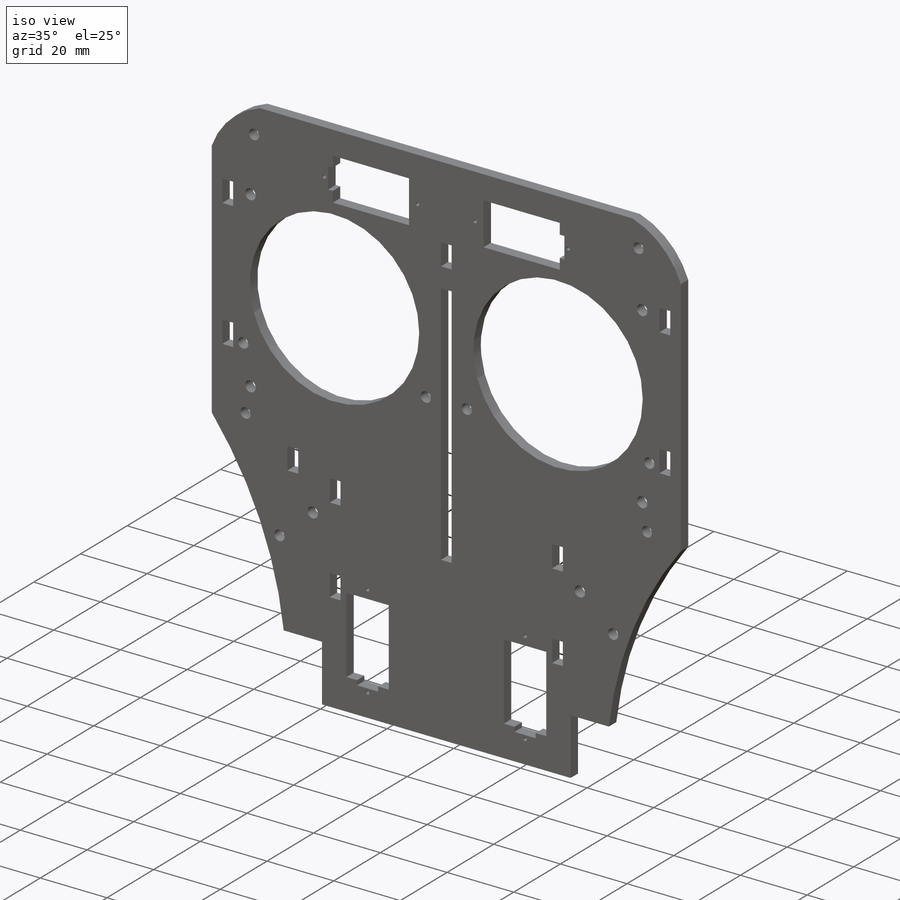
[diagram: iso view]
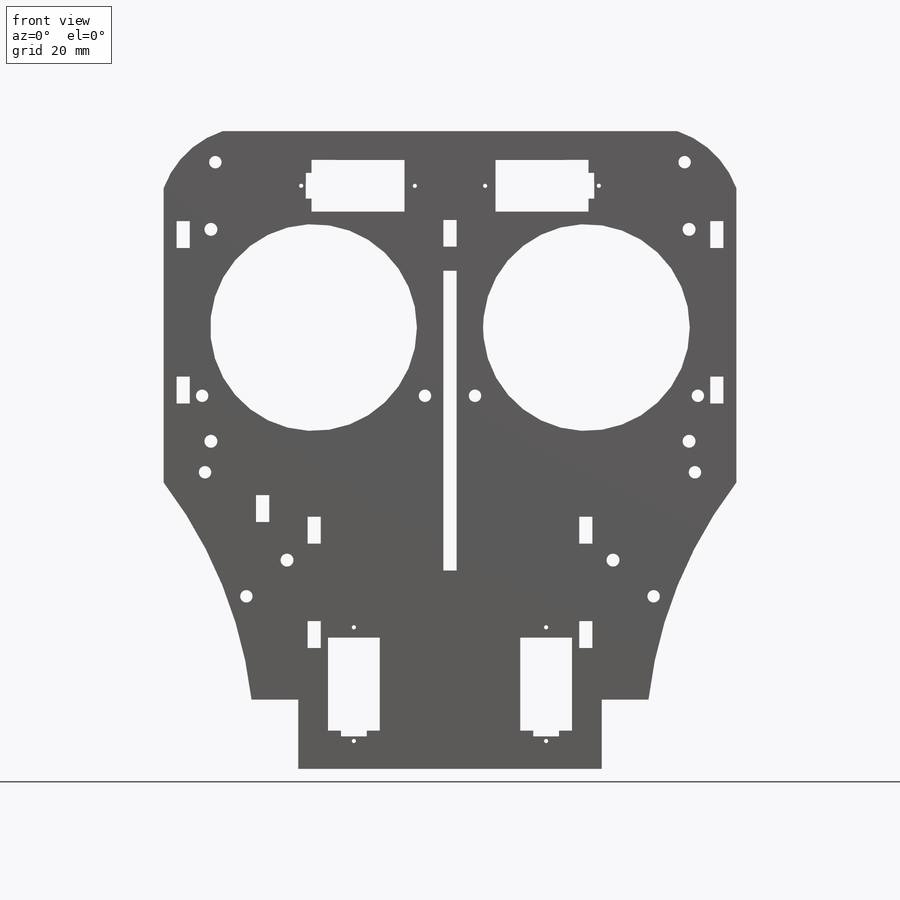
[diagram: front view]
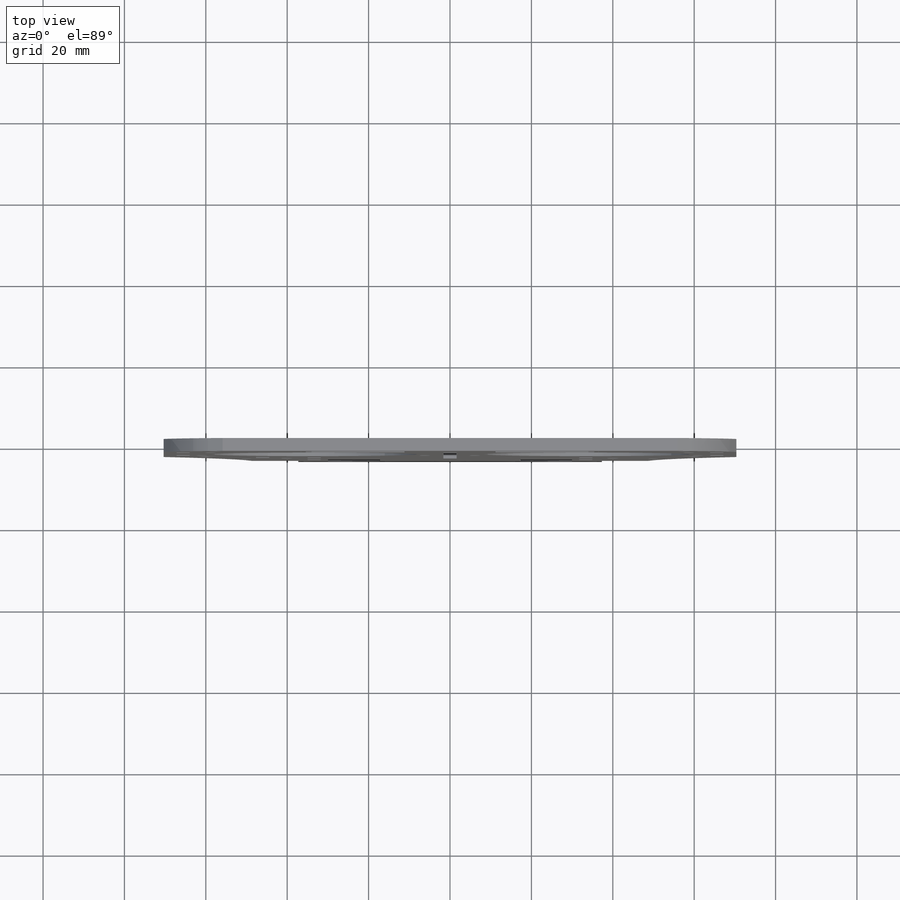
[diagram: top view]
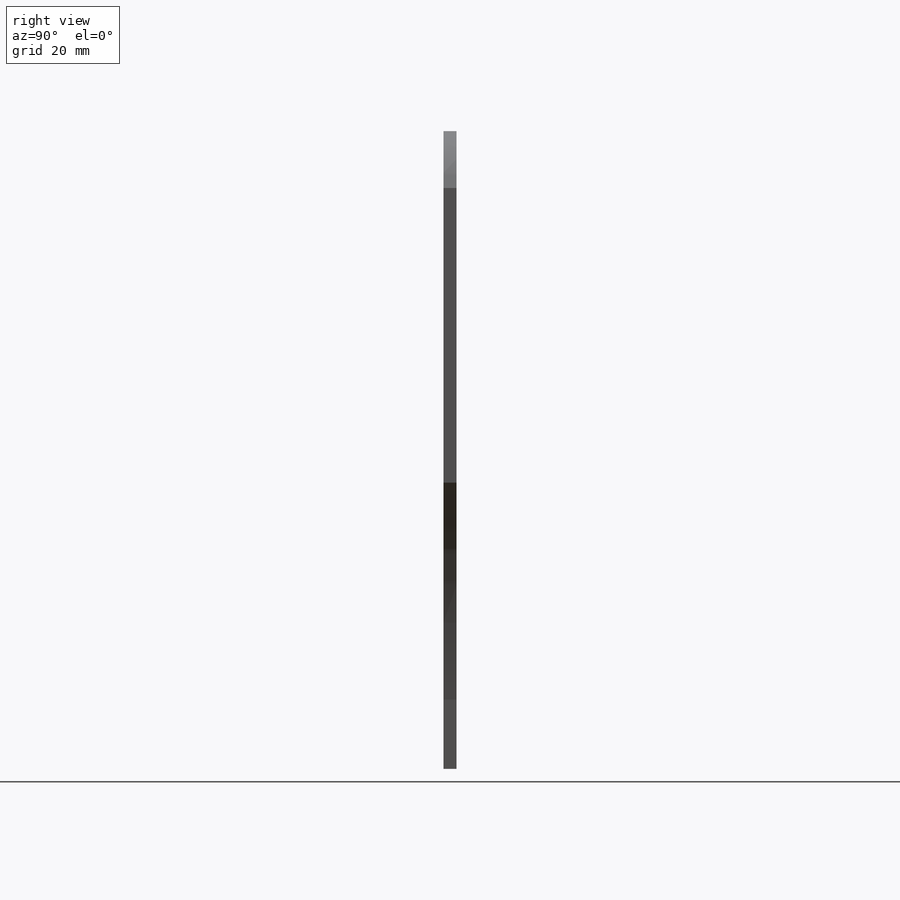
[diagram: right view]
SOLIDWORKS PART (.sldprt)
format: sldprt  version: not decoded by parser v0  size: 709,120 bytes
history: native  units: mm
features: sketch x12, cut_extrude x10, mirror x9, extrude x3, material x1, plane x1 (+16 scaffold rows collapsed)
feature tree (52):
  scaffold x16  (default folders/planes/origin — collapsed)
  material  "Material <not specified>"
  sketch  "Sketch1"  dims[c1.D1=88.9mm c1.D2=68.58mm c1.D3=12.7mm c1.D4=44.45mm c2.D1=70.358mm c2.D5=140.716mm c2.D6=~42.95616mm c2.D7=~85.912319mm c2.D2=139.7mm]
  extrude  "main body"  Depth=3.175mm
  sketch  "Sketch2"
  extrude  "servo_hole_SG90"  Depth=1.016mm
  cut_extrude  "cuts for eyes and motors"  [1 undecoded]
  sketch  "Sketch3"  dims[c1.D1=5.08mm c1.D2=3.81mm c1.D3=3.2258mm c1.D4=6.604mm c1.D5=5.08mm c1.D6=6.604mm c1.D7=3.2258mm c1.D8=25.4mm c1.D9=5.08mm c2.D5=5.08mm c2.D1=5.08mm c3.D5=3.2258mm c3.D9=5.08mm c3.D2=1.6002mm c3.D10=5.08mm c3.D11=0.0mm c3.D12=3.2258mm c4.D2=3.2258mm c4.D13=6.604mm c4.D14=6.604mm c4.D7=3.2258mm c4.D15=3.2258mm c5.D2=6.604mm c5.D10=25.4mm c5.D11=3.2258mm c5.D14=3.2258mm c5.D15=6.604mm c5.D16=21.336mm c6.D14=3.2258mm c6.D15=12.954mm c6.D16=40.132mm c6.D17=9.5758mm c6.D18=3.2258mm c6.D19=40.132mm c6.D20=5.08mm c7.D16=50.292mm c7.D2=69.85mm c7.D3=3.175mm c7.D4=2.54mm c7.D5=20.6375mm c8.D4=22.098mm c8.D5=3.175mm c8.D2=31.623mm]
  cut_extrude  "cut for assembly slots"  [1 undecoded]
  sketch  "Sketch4"  dims[D1=3.2258mm D2=73.66mm D3=34.29mm D4=6.5278mm D5=3.2258mm D6=21.844mm]
  cut_extrude  "cut for nose"  [1 undecoded]
  plane  "plane for eyelid mirror"  Offset=0mm
  sketch  "Sketch9"  dims[c1.D1=3.2258mm c1.D2=6.604mm c1.D3=6.604mm c1.D4=3.2258mm c1.D5=12.7mm c1.D6=26.67mm c1.D7=31.75mm c1.D8=~1.980373mm c2.D6=19.05mm c2.D8=3.2258mm c2.D9=6.35mm c2.D10=6.35mm c2.D11=3.2258mm c2.D12=24.638mm c2.D13=24.638mm c2.D14=12.7mm c2.D15=19.05mm c2.D5=12.7mm]
  cut_extrude  "slot for mandible"  [1 undecoded]
  mirror  "mirror of assembly slots"
  mirror  "Mirror1"
  sketch  "Sketch11"  dims[c1.D5=~107.72541mm c1.D1=14.478mm c1.D2=53.34mm c1.D3=13.97mm c1.D4=14.478mm c2.D1=21.59mm]
  cut_extrude  "cut for rounded face features"  [1 undecoded]
  mirror  "Mirror2"
  sketch  "Sketch12"  dims[D1=3.048mm D2=3.048mm D3=3.048mm D4=10.16mm D5=12.7mm D6=114.3mm D7=20.32mm D8=7.62mm D9=83.82mm]
  cut_extrude  "holes for spacers"  [1 undecoded]
  mirror  "Mirror3"
  mirror  "Mirror4"
  sketch  "Sketch13"  dims[D1=3.175mm D4=3.175mm D2=5.207mm D3=24.13mm D5=76.2mm D6=5.207mm]
  cut_extrude  "cut for face plate mount screw"  [1 undecoded]
  mirror  "Mirror5"
  sketch  "Sketch15"
  extrude  "extension for lip motor"  Depth=3.175mm
  mirror  "mirror of extension for lip motor"
  sketch  "Sketch16"  dims[c1.D1=~3.492555mm c2.D1=~0.053166deg c3.D1=23.622mm c3.D2=3.81mm]
  cut_extrude  "cut for lip motor"  [1 undecoded]
  mirror  "mirror of lip motor"
  sketch  "Sketch18"  dims[c1.D1=3.175mm c1.D2=27.94mm c1.D3=19.05mm c2.D2=5.08mm]
  cut_extrude  "cut for bracket screw"  [1 undecoded]
  mirror  "mirror of bracket screw"
  sketch  "Sketch19"  dims[c1.D1=3.2258mm c1.D2=6.604mm c2.D1=6.858mm c2.D2=3.2258mm c2.D3=~3.252171mm c3.D1=6.604mm c3.D2=3.2512mm c3.D3=22.682mm c3.D4=~3.080342mm]
  cut_extrude  "cut for gear tab"  [1 undecoded]
decode coverage: 13 of 34 modeling features carry decoded parameters
note: ~ marks probable driven/reference dimensions
note: 10 parameter values undecoded
summary: no parameter record found for 10 features
note: suppression state not decoded; provenance and decode notes live in map.json
